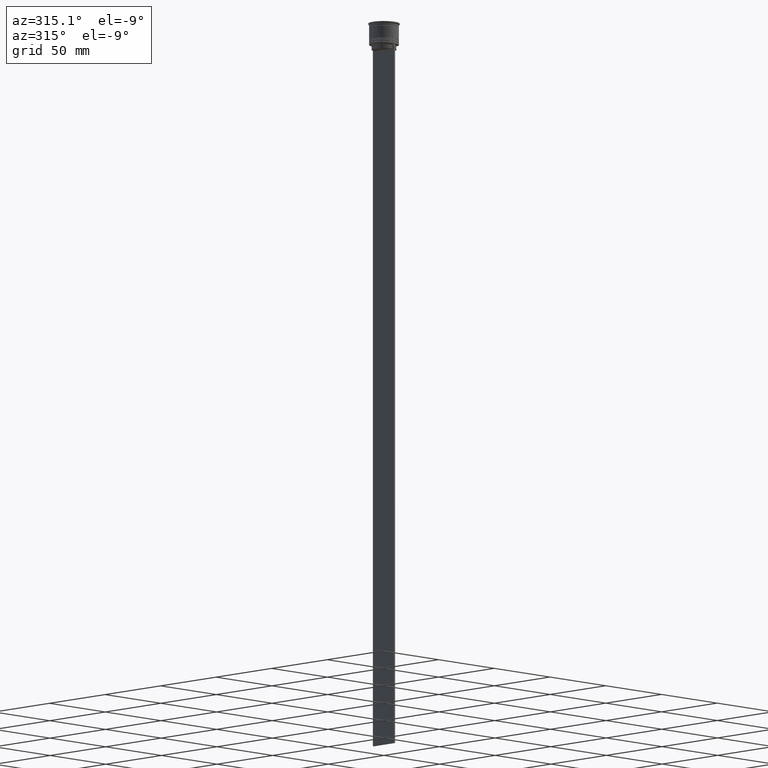
[diagram: clean part render]
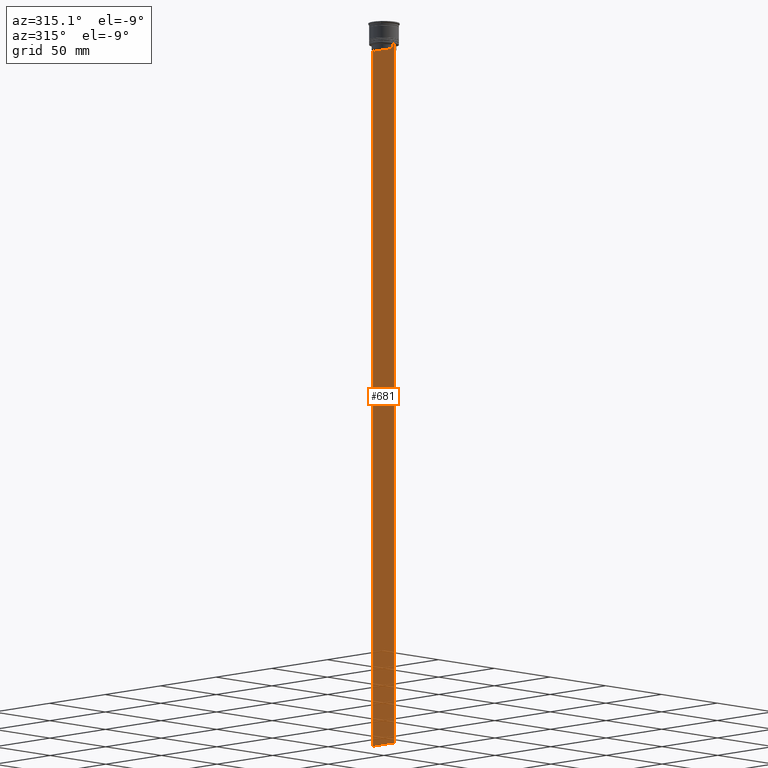
[diagram: same view with one face highlighted and labeled with its STEP entity id]
A machine part, auxiliary view. The second image highlights one B-rep face of the part: STEP entity #681.
In plain terms, the highlighted planar face has unit normal (-1, 0, 0).
Its self-contained STEP definition (entity closure, byte-faithful):
#35 = ORIENTED_EDGE ( 'NONE', *, *, #94, .F. ) ;
#39 = EDGE_CURVE ( 'NONE', #1105, #99, #304, .T. ) ;
#58 = CARTESIAN_POINT ( 'NONE',  ( -0.5000000000000000000, 8.218133718559618828, -14.16667606394327983 ) ) ;
#83 = VERTEX_POINT ( 'NONE', #2191 ) ;
#89 = DIRECTION ( 'NONE',  ( 0.000000000000000000, 0.000000000000000000, -1.000000000000000000 ) ) ;
#93 = VERTEX_POINT ( 'NONE', #2335 ) ;
#94 = EDGE_CURVE ( 'NONE', #2064, #2131, #1554, .T. ) ;
#95 = CARTESIAN_POINT ( 'NONE',  ( -0.5000000000000000000, 8.051152811434374001, -14.33334332653219079 ) ) ;
#99 = VERTEX_POINT ( 'NONE', #1990 ) ;
#112 = VERTEX_POINT ( 'NONE', #494 ) ;
#194 = EDGE_CURVE ( 'NONE', #93, #2064, #1844, .T. ) ;
#268 = CARTESIAN_POINT ( 'NONE',  ( -0.5000000000000000000, 7.899999999999994138, -17.00000000000000000 ) ) ;
#304 = LINE ( 'NONE', #1122, #2462 ) ;
#319 = LINE ( 'NONE', #1101, #369 ) ;
#356 = FACE_OUTER_BOUND ( 'NONE', #1986, .T. ) ;
#369 = VECTOR ( 'NONE', #89, 1000.000000000000000 ) ;
#426 = ORIENTED_EDGE ( 'NONE', *, *, #1396, .T. ) ;
#487 = ORIENTED_EDGE ( 'NONE', *, *, #1916, .F. ) ;
#490 = CARTESIAN_POINT ( 'NONE',  ( -0.5000000000000000000, -9.500000000000001776, -14.00000000000000178 ) ) ;
#494 = CARTESIAN_POINT ( 'NONE',  ( -0.5000000000000000000, 7.884161337770803080, -17.00000000000000000 ) ) ;
#509 = VERTEX_POINT ( 'NONE', #734 ) ;
#555 = B_SPLINE_CURVE_WITH_KNOTS ( 'NONE', 3,
 ( #2185, #58, #95, #1501 ),
 .UNSPECIFIED., .F., .F.,
 ( 4, 4 ),
 ( 0.01426761478740281447, 0.01497538974438914448 ),
 .UNSPECIFIED. ) ;
#556 = DIRECTION ( 'NONE',  ( 0.000000000000000000, -1.000000000000000000, 0.000000000000000000 ) ) ;
#563 = EDGE_CURVE ( 'NONE', #1012, #2615, #905, .T. ) ;
#571 = VECTOR ( 'NONE', #709, 1000.000000000000000 ) ;
#637 = ORIENTED_EDGE ( 'NONE', *, *, #563, .F. ) ;
#641 = EDGE_CURVE ( 'NONE', #1809, #93, #2415, .T. ) ;
#681 = ADVANCED_FACE ( 'NONE', ( #356 ), #784, .T. ) ;
#709 = DIRECTION ( 'NONE',  ( 0.000000000000000000, -1.000000000000000000, 0.000000000000000000 ) ) ;
#714 = ORIENTED_EDGE ( 'NONE', *, *, #2217, .F. ) ;
#734 = CARTESIAN_POINT ( 'NONE',  ( -0.5000000000000000000, 9.499999999999994671, -14.00000000000000178 ) ) ;
#777 = CARTESIAN_POINT ( 'NONE',  ( -0.5000000000000000000, -8.051152795888546265, -14.33334334204685057 ) ) ;
#784 = PLANE ( 'NONE',  #1143 ) ;
#800 = DIRECTION ( 'NONE',  ( -0.000000000000000000, -0.000000000000000000, 1.000000000000000000 ) ) ;
#902 = ORIENTED_EDGE ( 'NONE', *, *, #194, .F. ) ;
#905 = LINE ( 'NONE', #1512, #1825 ) ;
#914 = EDGE_CURVE ( 'NONE', #112, #1809, #938, .T. ) ;
#938 = LINE ( 'NONE', #268, #1437 ) ;
#943 = DIRECTION ( 'NONE',  ( -1.000000000000000000, 0.000000000000000000, 0.000000000000000000 ) ) ;
#947 = ORIENTED_EDGE ( 'NONE', *, *, #1572, .F. ) ;
#977 = CARTESIAN_POINT ( 'NONE',  ( -0.5000000000000000000, -7.884161337770803080, 0.000000000000000000 ) ) ;
#981 = DIRECTION ( 'NONE',  ( 0.000000000000000000, 0.000000000000000000, -1.000000000000000000 ) ) ;
#1012 = VERTEX_POINT ( 'NONE', #1301 ) ;
#1066 = ORIENTED_EDGE ( 'NONE', *, *, #641, .F. ) ;
#1101 = CARTESIAN_POINT ( 'NONE',  ( -0.5000000000000000000, 7.884161337770803080, 0.000000000000000000 ) ) ;
#1105 = VERTEX_POINT ( 'NONE', #2271 ) ;
#1122 = CARTESIAN_POINT ( 'NONE',  ( -0.5000000000000000000, -9.500000000000001776, -14.00000000000000178 ) ) ;
#1143 = AXIS2_PLACEMENT_3D ( 'NONE', #2401, #943, #1563 ) ;
#1168 = CARTESIAN_POINT ( 'NONE',  ( -0.5000000000000000000, -8.218133703942523738, -14.16667607853445787 ) ) ;
#1193 = CARTESIAN_POINT ( 'NONE',  ( -0.5000000000000000000, -9.500000000000001776, -14.00000000000000178 ) ) ;
#1206 = LINE ( 'NONE', #2253, #2530 ) ;
#1301 = CARTESIAN_POINT ( 'NONE',  ( -0.5000000000000000000, -9.500000000000001776, -464.0000000000000000 ) ) ;
#1319 = CARTESIAN_POINT ( 'NONE',  ( -0.5000000000000000000, -7.884161337770803080, -17.00000000000000000 ) ) ;
#1396 = EDGE_CURVE ( 'NONE', #509, #2615, #2555, .T. ) ;
#1412 = DIRECTION ( 'NONE',  ( 0.000000000000000000, -1.000000000000000000, 0.000000000000000000 ) ) ;
#1437 = VECTOR ( 'NONE', #1748, 1000.000000000000000 ) ;
#1441 = EDGE_CURVE ( 'NONE', #83, #112, #319, .T. ) ;
#1501 = CARTESIAN_POINT ( 'NONE',  ( -0.5000000000000000000, 7.884161337770803080, -14.50000000000000000 ) ) ;
#1512 = CARTESIAN_POINT ( 'NONE',  ( -0.5000000000000000000, -9.500000000000001776, -464.0000000000000000 ) ) ;
#1518 = EDGE_CURVE ( 'NONE', #2220, #1012, #1206, .T. ) ;
#1554 = LINE ( 'NONE', #2566, #571 ) ;
#1563 = DIRECTION ( 'NONE',  ( 0.000000000000000000, 0.000000000000000000, 1.000000000000000000 ) ) ;
#1572 = EDGE_CURVE ( 'NONE', #2131, #2220, #2441, .T. ) ;
#1608 = VECTOR ( 'NONE', #2346, 1000.000000000000000 ) ;
#1724 = DIRECTION ( 'NONE',  ( 0.000000000000000000, -1.000000000000000000, 0.000000000000000000 ) ) ;
#1748 = DIRECTION ( 'NONE',  ( 0.000000000000000000, -1.000000000000000000, 0.000000000000000000 ) ) ;
#1787 = CARTESIAN_POINT ( 'NONE',  ( -0.5000000000000000000, -8.385105843100605583, -14.00000000000000178 ) ) ;
#1809 = VERTEX_POINT ( 'NONE', #1319 ) ;
#1825 = VECTOR ( 'NONE', #2343, 1000.000000000000000 ) ;
#1842 = CARTESIAN_POINT ( 'NONE',  ( -0.5000000000000000000, -8.385105843100605583, -14.00000000000000178 ) ) ;
#1844 = B_SPLINE_CURVE_WITH_KNOTS ( 'NONE', 3,
 ( #2203, #777, #1168, #1787 ),
 .UNSPECIFIED., .F., .F.,
 ( 4, 4 ),
 ( 0.03673372442973153046, 0.03744389749832059688 ),
 .UNSPECIFIED. ) ;
#1916 = EDGE_CURVE ( 'NONE', #509, #1105, #2225, .T. ) ;
#1956 = ORIENTED_EDGE ( 'NONE', *, *, #914, .F. ) ;
#1986 = EDGE_LOOP ( 'NONE', ( #714, #2557, #487, #426, #637, #2049, #947, #35, #902, #1066, #1956, #2155 ) ) ;
#1990 = CARTESIAN_POINT ( 'NONE',  ( -0.5000000000000000000, 8.385105843100605583, -14.00000000000000178 ) ) ;
#2049 = ORIENTED_EDGE ( 'NONE', *, *, #1518, .F. ) ;
#2064 = VERTEX_POINT ( 'NONE', #1842 ) ;
#2131 = VERTEX_POINT ( 'NONE', #2384 ) ;
#2155 = ORIENTED_EDGE ( 'NONE', *, *, #1441, .F. ) ;
#2167 = CARTESIAN_POINT ( 'NONE',  ( -0.5000000000000000000, 9.499999999999998224, -464.0000000000000000 ) ) ;
#2176 = CARTESIAN_POINT ( 'NONE',  ( -0.5000000000000000000, 9.499999999999998224, 5.026297590440445440 ) ) ;
#2185 = CARTESIAN_POINT ( 'NONE',  ( -0.5000000000000000000, 8.385105843100605583, -14.00000000000000178 ) ) ;
#2191 = CARTESIAN_POINT ( 'NONE',  ( -0.5000000000000000000, 7.884161337770803080, -14.50000000000000000 ) ) ;
#2203 = CARTESIAN_POINT ( 'NONE',  ( -0.5000000000000000000, -7.884161337770803080, -14.50000000000000000 ) ) ;
#2217 = EDGE_CURVE ( 'NONE', #99, #83, #555, .T. ) ;
#2220 = VERTEX_POINT ( 'NONE', #490 ) ;
#2225 = LINE ( 'NONE', #2659, #2354 ) ;
#2253 = CARTESIAN_POINT ( 'NONE',  ( -0.5000000000000000000, -9.500000000000001776, 5.026297590440445440 ) ) ;
#2271 = CARTESIAN_POINT ( 'NONE',  ( -0.5000000000000000000, 9.386692708297204035, -14.00000000000000178 ) ) ;
#2314 = VECTOR ( 'NONE', #800, 1000.000000000000000 ) ;
#2335 = CARTESIAN_POINT ( 'NONE',  ( -0.5000000000000000000, -7.884161337770803080, -14.50000000000000000 ) ) ;
#2343 = DIRECTION ( 'NONE',  ( 0.000000000000000000, 1.000000000000000000, 0.000000000000000000 ) ) ;
#2346 = DIRECTION ( 'NONE',  ( 0.000000000000000000, 0.000000000000000000, -1.000000000000000000 ) ) ;
#2354 = VECTOR ( 'NONE', #556, 1000.000000000000000 ) ;
#2384 = CARTESIAN_POINT ( 'NONE',  ( -0.5000000000000000000, -9.386692708297204035, -14.00000000000000178 ) ) ;
#2399 = VECTOR ( 'NONE', #1412, 1000.000000000000000 ) ;
#2401 = CARTESIAN_POINT ( 'NONE',  ( -0.5000000000000000000, -9.500000000000001776, 5.026297590440445440 ) ) ;
#2415 = LINE ( 'NONE', #977, #2314 ) ;
#2441 = LINE ( 'NONE', #1193, #2399 ) ;
#2462 = VECTOR ( 'NONE', #1724, 1000.000000000000000 ) ;
#2530 = VECTOR ( 'NONE', #981, 1000.000000000000000 ) ;
#2555 = LINE ( 'NONE', #2176, #1608 ) ;
#2557 = ORIENTED_EDGE ( 'NONE', *, *, #39, .F. ) ;
#2566 = CARTESIAN_POINT ( 'NONE',  ( -0.5000000000000000000, -9.500000000000001776, -14.00000000000000178 ) ) ;
#2615 = VERTEX_POINT ( 'NONE', #2167 ) ;
#2659 = CARTESIAN_POINT ( 'NONE',  ( -0.5000000000000000000, -9.500000000000001776, -14.00000000000000178 ) ) ;